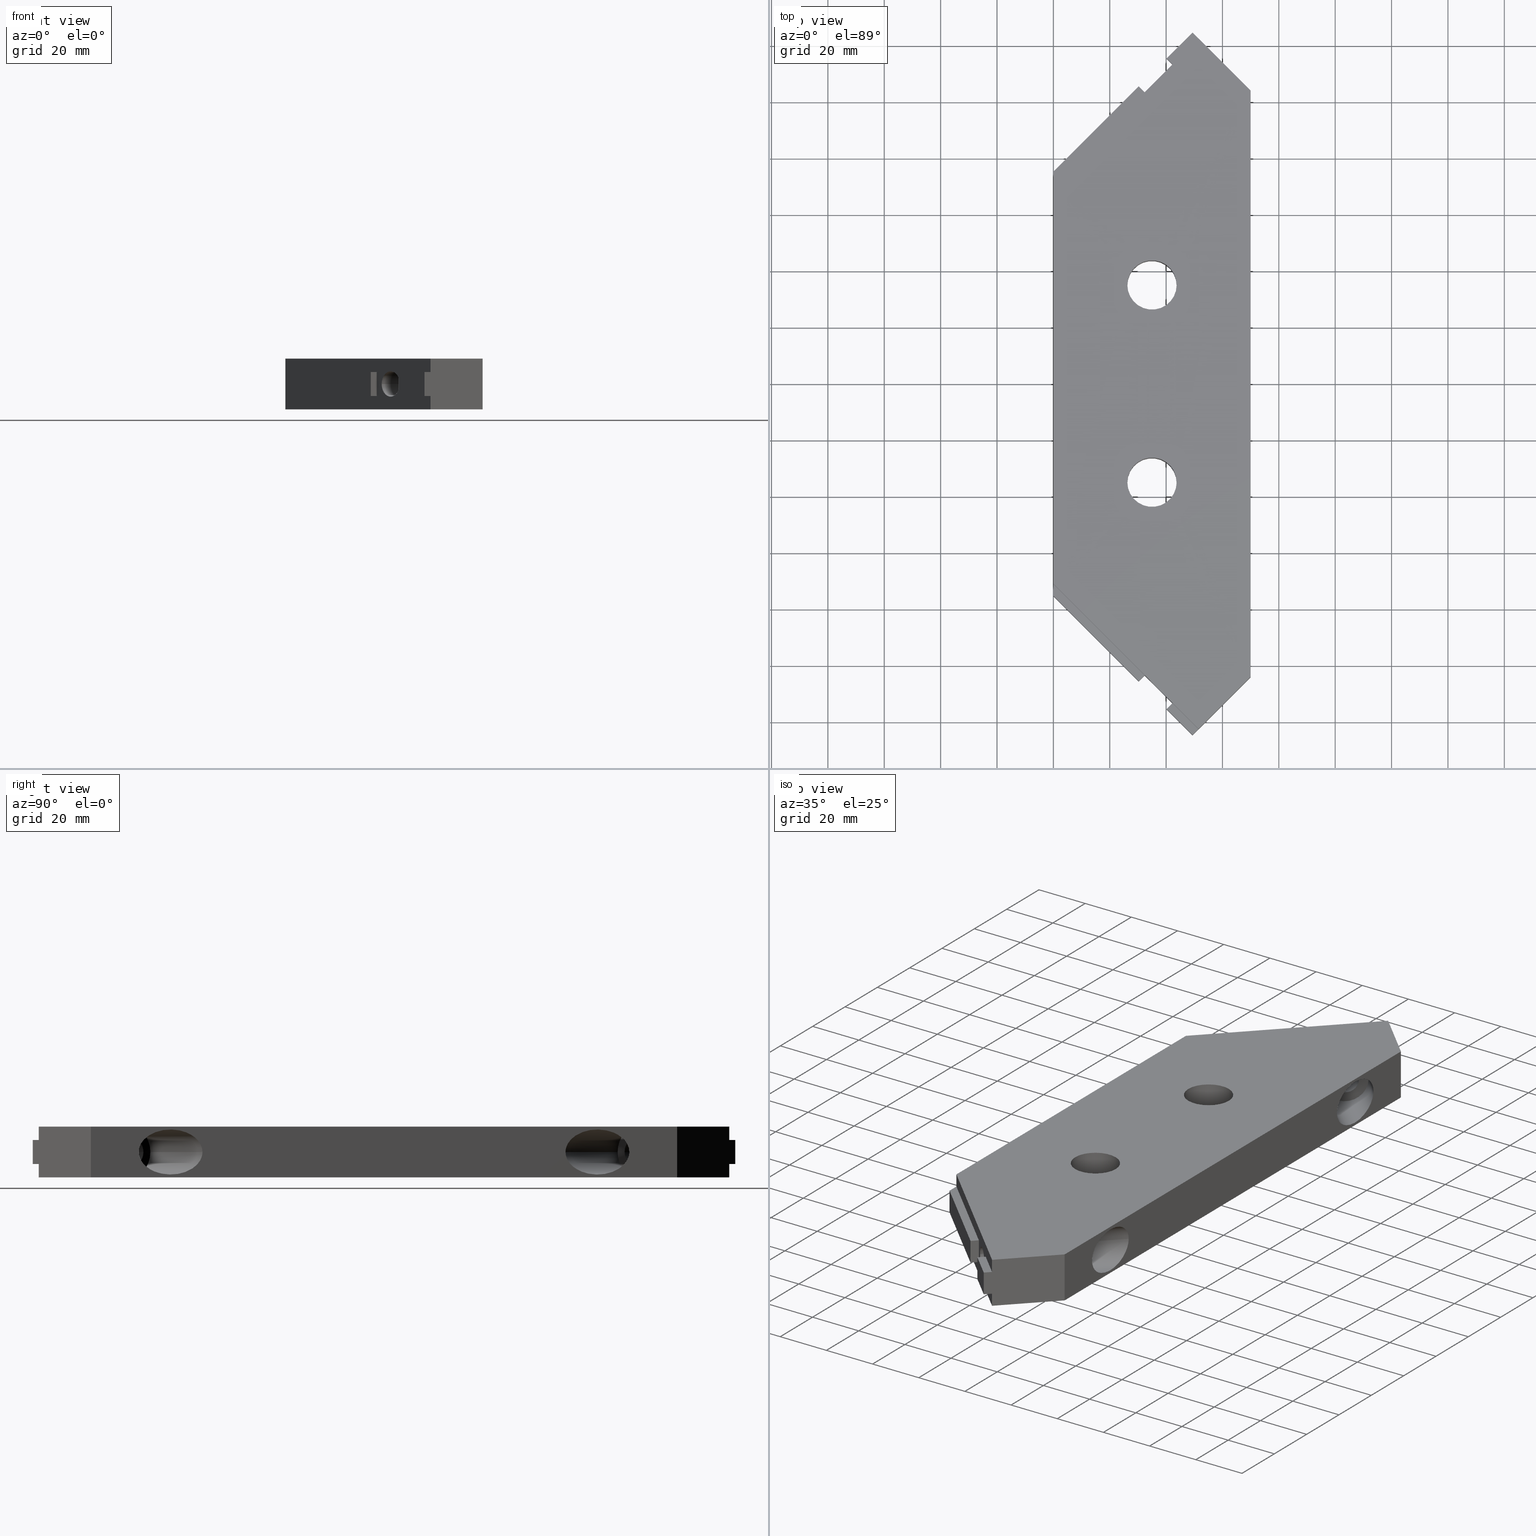
[diagram: canonical four-view strip — front | top / right | iso, engineering-drawing reading convention]
A machine part, canonical four-view strip (front | top / right | iso — engineering-drawing reading convention). The complete STEP part file that produces these views, byte-faithful:
ISO-10303-21;
HEADER;
/****************************************************************
 * Generated by software with PDE/Lib inside                    *
 * PDElib Version v4.4, created Mon 02/23/2004                  *
 * International Technegroup Inc. (www.iti-oh.com)              *
 ****************************************************************/
FILE_DESCRIPTION(('STEP AP203'),'2;1');
FILE_NAME('30.109.00.stp','2011-03-07T09:54:41',(''),(''),'2009.3.110','THINKDESIGN','');
FILE_SCHEMA(('CONFIG_CONTROL_DESIGN'));
ENDSEC;
DATA;
#2=CARTESIAN_POINT('',(69.999999999719904,-103.999999999584390,18.0));
#3=DIRECTION('',(-1.0,0.0,0.0));
#4=DIRECTION('',(0.0,1.0,0.0));
#5=AXIS2_PLACEMENT_3D('',#2,#3,#4);
#6=PLANE('',#5);
#7=CARTESIAN_POINT('',(69.999999999719904,-103.999999999584390,18.0));
#8=VERTEX_POINT('',#7);
#9=CARTESIAN_POINT('',(69.999999999719904,-103.999999999584390,0.0));
#10=VERTEX_POINT('',#9);
#11=CARTESIAN_POINT('',(69.999999999719904,-103.999999999584390,18.0));
#12=DIRECTION('',(0.0,0.0,-1.0));
#13=VECTOR('',#12,18.0);
#14=LINE('',#11,#13);
#15=EDGE_CURVE('',#8,#10,#14,.T.);
#16=ORIENTED_EDGE('',*,*,#15,.T.);
#17=CARTESIAN_POINT('',(69.999999999719876,103.999999999583680,0.0));
#18=VERTEX_POINT('',#17);
#19=CARTESIAN_POINT('',(69.999999999719904,-103.999999999584390,0.0));
#20=DIRECTION('',(0.0,1.0,0.0));
#21=VECTOR('',#20,207.999999999168070);
#22=LINE('',#19,#21);
#23=EDGE_CURVE('',#10,#18,#22,.T.);
#24=ORIENTED_EDGE('',*,*,#23,.T.);
#25=CARTESIAN_POINT('',(69.999999999719876,103.999999999583680,18.0));
#26=VERTEX_POINT('',#25);
#27=CARTESIAN_POINT('',(69.999999999719876,103.999999999583680,18.0));
#28=DIRECTION('',(0.0,0.0,-1.0));
#29=VECTOR('',#28,18.0);
#30=LINE('',#27,#29);
#31=EDGE_CURVE('',#26,#18,#30,.T.);
#32=ORIENTED_EDGE('',*,*,#31,.F.);
#33=CARTESIAN_POINT('',(69.999999999719904,-103.999999999584390,18.0));
#34=DIRECTION('',(0.0,1.0,0.0));
#35=VECTOR('',#34,207.999999999168070);
#36=LINE('',#33,#35);
#37=EDGE_CURVE('',#8,#26,#36,.T.);
#38=ORIENTED_EDGE('',*,*,#37,.F.);
#39=EDGE_LOOP('',(#16,#24,#32,#38));
#40=FACE_OUTER_BOUND('',#39,.T.);
#41=CARTESIAN_POINT('',(69.999999999719904,87.029438061060603,9.0));
#42=VERTEX_POINT('',#41);
#43=CARTESIAN_POINT('',(69.999999999719904,64.402019999743459,9.0));
#44=VERTEX_POINT('',#43);
#45=CARTESIAN_POINT('',(69.999999999719904,75.715729030401292,9.0));
#46=DIRECTION('',(1.0,1.366428E-016,0.0));
#47=DIRECTION('',(1.366428E-016,-1.0,0.0));
#48=AXIS2_PLACEMENT_3D('',#45,#46,#47);
#49=ELLIPSE('',#48,11.313709030659313,8.000000375950680);
#50=EDGE_CURVE('',#42,#44,#49,.T.);
#51=ORIENTED_EDGE('',*,*,#50,.F.);
#52=CARTESIAN_POINT('',(69.999999999719904,75.715729030401292,9.0));
#53=DIRECTION('',(1.0,1.366428E-016,0.0));
#54=DIRECTION('',(1.366428E-016,-1.0,0.0));
#55=AXIS2_PLACEMENT_3D('',#52,#53,#54);
#56=ELLIPSE('',#55,11.313709030659313,8.000000375950680);
#57=EDGE_CURVE('',#44,#42,#56,.T.);
#58=ORIENTED_EDGE('',*,*,#57,.F.);
#59=EDGE_LOOP('',(#51,#58));
#60=FACE_BOUND('',#59,.T.);
#61=CARTESIAN_POINT('',(69.999999999719904,-87.029438061061398,9.0));
#62=VERTEX_POINT('',#61);
#63=CARTESIAN_POINT('',(69.999999999719904,-64.402019999742350,9.0));
#64=VERTEX_POINT('',#63);
#65=CARTESIAN_POINT('',(69.999999999719904,-75.715729030401860,9.0));
#66=DIRECTION('',(1.0,1.366428E-016,0.0));
#67=DIRECTION('',(1.366428E-016,-1.0,0.0));
#68=AXIS2_PLACEMENT_3D('',#65,#66,#67);
#69=ELLIPSE('',#68,11.313709030659538,8.000000375950842);
#70=EDGE_CURVE('',#62,#64,#69,.T.);
#71=ORIENTED_EDGE('',*,*,#70,.F.);
#72=CARTESIAN_POINT('',(69.999999999719904,-75.715729030401860,9.0));
#73=DIRECTION('',(1.0,1.366428E-016,0.0));
#74=DIRECTION('',(1.366428E-016,-1.0,0.0));
#75=AXIS2_PLACEMENT_3D('',#72,#73,#74);
#76=ELLIPSE('',#75,11.313709030659538,8.000000375950842);
#77=EDGE_CURVE('',#64,#62,#76,.T.);
#78=ORIENTED_EDGE('',*,*,#77,.F.);
#79=EDGE_LOOP('',(#71,#78));
#80=FACE_BOUND('',#79,.T.);
#81=ADVANCED_FACE('',(#40,#60,#80),#6,.F.);
#82=CARTESIAN_POINT('',(51.499999999793999,122.499999999510010,18.0));
#83=DIRECTION('',(0.707106781186548,-0.707106781186548,0.0));
#84=DIRECTION('',(-0.707106781186548,-0.707106781186548,0.0));
#85=AXIS2_PLACEMENT_3D('',#82,#83,#84);
#86=PLANE('',#85);
#87=CARTESIAN_POINT('',(51.499999999793999,122.499999999510010,18.0));
#88=VERTEX_POINT('',#87);
#89=CARTESIAN_POINT('',(51.499999999793999,122.499999999510010,13.250000000000000));
#90=VERTEX_POINT('',#89);
#91=CARTESIAN_POINT('',(51.499999999793999,122.499999999510010,18.0));
#92=DIRECTION('',(0.0,0.0,-1.0));
#93=VECTOR('',#92,4.750000000000000);
#94=LINE('',#91,#93);
#95=EDGE_CURVE('',#88,#90,#94,.T.);
#96=ORIENTED_EDGE('',*,*,#95,.T.);
#97=CARTESIAN_POINT('',(42.307611999830442,113.307611999546680,13.250000000000000));
#98=VERTEX_POINT('',#97);
#99=CARTESIAN_POINT('',(42.307611999830442,113.307611999546680,13.250000000000000));
#100=DIRECTION('',(0.707106781186556,0.707106781186539,0.0));
#101=VECTOR('',#100,12.999999780143991);
#102=LINE('',#99,#101);
#103=EDGE_CURVE('',#98,#90,#102,.T.);
#104=ORIENTED_EDGE('',*,*,#103,.F.);
#105=CARTESIAN_POINT('',(42.307611999830442,113.307611999546680,4.750000000000000));
#106=VERTEX_POINT('',#105);
#107=CARTESIAN_POINT('',(42.307611999830442,113.307611999546680,4.750000000000000));
#108=DIRECTION('',(0.0,0.0,1.0));
#109=VECTOR('',#108,8.500000000000000);
#110=LINE('',#107,#109);
#111=EDGE_CURVE('',#106,#98,#110,.T.);
#112=ORIENTED_EDGE('',*,*,#111,.F.);
#113=CARTESIAN_POINT('',(51.499999999793999,122.499999999510010,4.750000000000000));
#114=VERTEX_POINT('',#113);
#115=CARTESIAN_POINT('',(42.307611999830442,113.307611999546680,4.750000000000000));
#116=DIRECTION('',(0.707106781186556,0.707106781186539,0.0));
#117=VECTOR('',#116,12.999999780143991);
#118=LINE('',#115,#117);
#119=EDGE_CURVE('',#106,#114,#118,.T.);
#120=ORIENTED_EDGE('',*,*,#119,.T.);
#121=CARTESIAN_POINT('',(51.499999999793999,122.499999999510010,0.0));
#122=VERTEX_POINT('',#121);
#123=CARTESIAN_POINT('',(51.499999999793999,122.499999999510010,4.750000000000000));
#124=DIRECTION('',(0.0,0.0,-1.0));
#125=VECTOR('',#124,4.750000000000000);
#126=LINE('',#123,#125);
#127=EDGE_CURVE('',#114,#122,#126,.T.);
#128=ORIENTED_EDGE('',*,*,#127,.T.);
#129=CARTESIAN_POINT('',(0.0,70.999999999716010,0.0));
#130=VERTEX_POINT('',#129);
#131=CARTESIAN_POINT('',(51.499999999793999,122.499999999510010,0.0));
#132=DIRECTION('',(-0.707106781186548,-0.707106781186548,0.0));
#133=VECTOR('',#132,72.831998461923064);
#134=LINE('',#131,#133);
#135=EDGE_CURVE('',#122,#130,#134,.T.);
#136=ORIENTED_EDGE('',*,*,#135,.T.);
#137=CARTESIAN_POINT('',(-2.842171E-014,70.999999999716010,4.750000000000000));
#138=VERTEX_POINT('',#137);
#139=CARTESIAN_POINT('',(0.0,70.999999999716010,4.750000000000000));
#140=DIRECTION('',(0.0,0.0,-1.0));
#141=VECTOR('',#140,4.750000000000000);
#142=LINE('',#139,#141);
#143=EDGE_CURVE('',#138,#130,#142,.T.);
#144=ORIENTED_EDGE('',*,*,#143,.F.);
#145=CARTESIAN_POINT('',(32.408116999870344,103.408116999586350,4.750000000000000));
#146=VERTEX_POINT('',#145);
#147=CARTESIAN_POINT('',(-2.842171E-014,70.999999999716010,4.750000000000000));
#148=DIRECTION('',(0.707106781186548,0.707106781186547,0.0));
#149=VECTOR('',#148,45.831998592190722);
#150=LINE('',#147,#149);
#151=EDGE_CURVE('',#138,#146,#150,.T.);
#152=ORIENTED_EDGE('',*,*,#151,.T.);
#153=CARTESIAN_POINT('',(32.408116999870344,103.408116999586350,13.250000000000000));
#154=VERTEX_POINT('',#153);
#155=CARTESIAN_POINT('',(32.408116999870344,103.408116999586350,4.750000000000000));
#156=DIRECTION('',(0.0,0.0,1.0));
#157=VECTOR('',#156,8.500000000000000);
#158=LINE('',#155,#157);
#159=EDGE_CURVE('',#146,#154,#158,.T.);
#160=ORIENTED_EDGE('',*,*,#159,.T.);
#161=CARTESIAN_POINT('',(-2.842171E-014,70.999999999716010,13.250000000000000));
#162=VERTEX_POINT('',#161);
#163=CARTESIAN_POINT('',(-2.842171E-014,70.999999999716010,13.250000000000000));
#164=DIRECTION('',(0.707106781186548,0.707106781186547,0.0));
#165=VECTOR('',#164,45.831998592190722);
#166=LINE('',#163,#165);
#167=EDGE_CURVE('',#162,#154,#166,.T.);
#168=ORIENTED_EDGE('',*,*,#167,.F.);
#169=CARTESIAN_POINT('',(0.0,70.999999999716010,18.0));
#170=VERTEX_POINT('',#169);
#171=CARTESIAN_POINT('',(0.0,70.999999999716010,18.0));
#172=DIRECTION('',(0.0,0.0,-1.0));
#173=VECTOR('',#172,4.750000000000000);
#174=LINE('',#171,#173);
#175=EDGE_CURVE('',#170,#162,#174,.T.);
#176=ORIENTED_EDGE('',*,*,#175,.F.);
#177=CARTESIAN_POINT('',(51.499999999793999,122.499999999510010,18.0));
#178=DIRECTION('',(-0.707106781186548,-0.707106781186548,0.0));
#179=VECTOR('',#178,72.831998461923064);
#180=LINE('',#177,#179);
#181=EDGE_CURVE('',#88,#170,#180,.T.);
#182=ORIENTED_EDGE('',*,*,#181,.F.);
#183=EDGE_LOOP('',(#96,#104,#112,#120,#128,#136,#144,#152,#160,#168,#176,#182));
#184=FACE_OUTER_BOUND('',#183,.T.);
#185=CARTESIAN_POINT('',(40.539845030542139,111.539845030258120,9.0));
#186=VERTEX_POINT('',#185);
#187=CARTESIAN_POINT('',(34.175883999863146,105.175883999579130,9.0));
#188=VERTEX_POINT('',#187);
#189=CARTESIAN_POINT('',(37.357864515202650,108.357864514918630,9.0));
#190=DIRECTION('',(-0.707106781186548,0.707106781186548,0.0));
#191=DIRECTION('',(-0.707106781186548,-0.707106781186548,0.0));
#192=AXIS2_PLACEMENT_3D('',#189,#190,#191);
#193=CIRCLE('',#192,4.500000000000036);
#194=EDGE_CURVE('',#186,#188,#193,.T.);
#195=ORIENTED_EDGE('',*,*,#194,.F.);
#196=CARTESIAN_POINT('',(37.357864515202650,108.357864514918630,9.0));
#197=DIRECTION('',(-0.707106781186548,0.707106781186548,0.0));
#198=DIRECTION('',(-0.707106781186548,-0.707106781186548,0.0));
#199=AXIS2_PLACEMENT_3D('',#196,#197,#198);
#200=CIRCLE('',#199,4.500000000000036);
#201=EDGE_CURVE('',#188,#186,#200,.T.);
#202=ORIENTED_EDGE('',*,*,#201,.F.);
#203=EDGE_LOOP('',(#195,#202));
#204=FACE_BOUND('',#203,.T.);
#205=ADVANCED_FACE('',(#184,#204),#86,.F.);
#206=CARTESIAN_POINT('',(0.0,-70.999999999716010,18.0));
#207=DIRECTION('',(0.707106781186548,0.707106781186548,0.0));
#208=DIRECTION('',(0.707106781186548,-0.707106781186548,0.0));
#209=AXIS2_PLACEMENT_3D('',#206,#207,#208);
#210=PLANE('',#209);
#211=CARTESIAN_POINT('',(0.0,-70.999999999716010,18.0));
#212=VERTEX_POINT('',#211);
#213=CARTESIAN_POINT('',(0.0,-70.999999999716010,13.250000000000000));
#214=VERTEX_POINT('',#213);
#215=CARTESIAN_POINT('',(0.0,-70.999999999716010,18.0));
#216=DIRECTION('',(0.0,0.0,-1.0));
#217=VECTOR('',#216,4.750000000000000);
#218=LINE('',#215,#217);
#219=EDGE_CURVE('',#212,#214,#218,.T.);
#220=ORIENTED_EDGE('',*,*,#219,.T.);
#221=CARTESIAN_POINT('',(32.408116999870344,-103.408116999586810,13.250000000000000));
#222=VERTEX_POINT('',#221);
#223=CARTESIAN_POINT('',(32.408116999870344,-103.408116999586810,13.250000000000000));
#224=DIRECTION('',(-0.707106781186543,0.707106781186553,0.0));
#225=VECTOR('',#224,45.831998592191020);
#226=LINE('',#223,#225);
#227=EDGE_CURVE('',#222,#214,#226,.T.);
#228=ORIENTED_EDGE('',*,*,#227,.F.);
#229=CARTESIAN_POINT('',(32.408116999870344,-103.408116999586810,4.750000000000000));
#230=VERTEX_POINT('',#229);
#231=CARTESIAN_POINT('',(32.408116999870344,-103.408116999586810,4.750000000000000));
#232=DIRECTION('',(0.0,0.0,1.0));
#233=VECTOR('',#232,8.500000000000000);
#234=LINE('',#231,#233);
#235=EDGE_CURVE('',#230,#222,#234,.T.);
#236=ORIENTED_EDGE('',*,*,#235,.F.);
#237=CARTESIAN_POINT('',(0.0,-70.999999999716010,4.750000000000000));
#238=VERTEX_POINT('',#237);
#239=CARTESIAN_POINT('',(32.408116999870344,-103.408116999586810,4.750000000000000));
#240=DIRECTION('',(-0.707106781186543,0.707106781186553,0.0));
#241=VECTOR('',#240,45.831998592191020);
#242=LINE('',#239,#241);
#243=EDGE_CURVE('',#230,#238,#242,.T.);
#244=ORIENTED_EDGE('',*,*,#243,.T.);
#245=CARTESIAN_POINT('',(0.0,-70.999999999716010,0.0));
#246=VERTEX_POINT('',#245);
#247=CARTESIAN_POINT('',(0.0,-70.999999999716010,4.750000000000000));
#248=DIRECTION('',(0.0,0.0,-1.0));
#249=VECTOR('',#248,4.750000000000000);
#250=LINE('',#247,#249);
#251=EDGE_CURVE('',#238,#246,#250,.T.);
#252=ORIENTED_EDGE('',*,*,#251,.T.);
#253=CARTESIAN_POINT('',(51.499999999793999,-122.499999999510010,0.0));
#254=VERTEX_POINT('',#253);
#255=CARTESIAN_POINT('',(0.0,-70.999999999716010,0.0));
#256=DIRECTION('',(0.707106781186548,-0.707106781186548,0.0));
#257=VECTOR('',#256,72.831998461923064);
#258=LINE('',#255,#257);
#259=EDGE_CURVE('',#246,#254,#258,.T.);
#260=ORIENTED_EDGE('',*,*,#259,.T.);
#261=CARTESIAN_POINT('',(51.499999999793999,-122.499999999510010,4.750000000000000));
#262=VERTEX_POINT('',#261);
#263=CARTESIAN_POINT('',(51.499999999793999,-122.499999999510010,4.750000000000000));
#264=DIRECTION('',(0.0,0.0,-1.0));
#265=VECTOR('',#264,4.750000000000000);
#266=LINE('',#263,#265);
#267=EDGE_CURVE('',#262,#254,#266,.T.);
#268=ORIENTED_EDGE('',*,*,#267,.F.);
#269=CARTESIAN_POINT('',(42.307611999830897,-113.307611999546910,4.750000000000000));
#270=VERTEX_POINT('',#269);
#271=CARTESIAN_POINT('',(51.499999999793999,-122.499999999510010,4.750000000000000));
#272=DIRECTION('',(-0.707106781186548,0.707106781186548,0.0));
#273=VECTOR('',#272,12.999999780143510);
#274=LINE('',#271,#273);
#275=EDGE_CURVE('',#262,#270,#274,.T.);
#276=ORIENTED_EDGE('',*,*,#275,.T.);
#277=CARTESIAN_POINT('',(42.307611999830897,-113.307611999546910,13.250000000000000));
#278=VERTEX_POINT('',#277);
#279=CARTESIAN_POINT('',(42.307611999830897,-113.307611999546910,4.750000000000000));
#280=DIRECTION('',(0.0,0.0,1.0));
#281=VECTOR('',#280,8.500000000000000);
#282=LINE('',#279,#281);
#283=EDGE_CURVE('',#270,#278,#282,.T.);
#284=ORIENTED_EDGE('',*,*,#283,.T.);
#285=CARTESIAN_POINT('',(51.499999999793999,-122.499999999510010,13.250000000000000));
#286=VERTEX_POINT('',#285);
#287=CARTESIAN_POINT('',(51.499999999793999,-122.499999999510010,13.250000000000000));
#288=DIRECTION('',(-0.707106781186548,0.707106781186548,0.0));
#289=VECTOR('',#288,12.999999780143510);
#290=LINE('',#287,#289);
#291=EDGE_CURVE('',#286,#278,#290,.T.);
#292=ORIENTED_EDGE('',*,*,#291,.F.);
#293=CARTESIAN_POINT('',(51.499999999793999,-122.499999999510010,18.0));
#294=VERTEX_POINT('',#293);
#295=CARTESIAN_POINT('',(51.499999999793999,-122.499999999510010,18.0));
#296=DIRECTION('',(0.0,0.0,-1.0));
#297=VECTOR('',#296,4.750000000000000);
#298=LINE('',#295,#297);
#299=EDGE_CURVE('',#294,#286,#298,.T.);
#300=ORIENTED_EDGE('',*,*,#299,.F.);
#301=CARTESIAN_POINT('',(0.0,-70.999999999716010,18.0));
#302=DIRECTION('',(0.707106781186548,-0.707106781186548,0.0));
#303=VECTOR('',#302,72.831998461923064);
#304=LINE('',#301,#303);
#305=EDGE_CURVE('',#212,#294,#304,.T.);
#306=ORIENTED_EDGE('',*,*,#305,.F.);
#307=EDGE_LOOP('',(#220,#228,#236,#244,#252,#260,#268,#276,#284,#292,#300,#306));
#308=FACE_OUTER_BOUND('',#307,.T.);
#309=CARTESIAN_POINT('',(40.539845030542409,-111.539845030258360,9.0));
#310=VERTEX_POINT('',#309);
#311=CARTESIAN_POINT('',(34.175883999863458,-105.175883999579450,9.0));
#312=VERTEX_POINT('',#311);
#313=CARTESIAN_POINT('',(37.357864515202976,-108.357864514918960,9.0));
#314=DIRECTION('',(-0.707106781186544,-0.707106781186551,0.0));
#315=DIRECTION('',(-0.707106781186551,0.707106781186544,0.0));
#316=AXIS2_PLACEMENT_3D('',#313,#314,#315);
#317=CIRCLE('',#316,4.499999999999936);
#318=EDGE_CURVE('',#310,#312,#317,.T.);
#319=ORIENTED_EDGE('',*,*,#318,.F.);
#320=CARTESIAN_POINT('',(37.357864515202976,-108.357864514918960,9.0));
#321=DIRECTION('',(-0.707106781186544,-0.707106781186551,0.0));
#322=DIRECTION('',(-0.707106781186551,0.707106781186544,0.0));
#323=AXIS2_PLACEMENT_3D('',#320,#321,#322);
#324=CIRCLE('',#323,4.499999999999936);
#325=EDGE_CURVE('',#312,#310,#324,.T.);
#326=ORIENTED_EDGE('',*,*,#325,.F.);
#327=EDGE_LOOP('',(#319,#326));
#328=FACE_BOUND('',#327,.T.);
#329=ADVANCED_FACE('',(#308,#328),#210,.F.);
#330=CARTESIAN_POINT('',(-7.000004725295597,-147.000004724302470,18.0));
#331=DIRECTION('',(0.0,0.0,1.0));
#332=DIRECTION('',(1.0,0.0,0.0));
#333=AXIS2_PLACEMENT_3D('',#330,#331,#332);
#334=PLANE('',#333);
#335=ORIENTED_EDGE('',*,*,#37,.T.);
#336=CARTESIAN_POINT('',(69.999999999719876,103.999999999583680,18.0));
#337=DIRECTION('',(-0.707106781186539,0.707106781186556,0.0));
#338=VECTOR('',#337,26.162950903797753);
#339=LINE('',#336,#338);
#340=EDGE_CURVE('',#26,#88,#339,.T.);
#341=ORIENTED_EDGE('',*,*,#340,.T.);
#342=ORIENTED_EDGE('',*,*,#181,.T.);
#343=CARTESIAN_POINT('',(0.0,70.999999999716010,18.0));
#344=DIRECTION('',(0.0,-1.0,0.0));
#345=VECTOR('',#344,141.999999999432020);
#346=LINE('',#343,#345);
#347=EDGE_CURVE('',#170,#212,#346,.T.);
#348=ORIENTED_EDGE('',*,*,#347,.T.);
#349=ORIENTED_EDGE('',*,*,#305,.T.);
#350=CARTESIAN_POINT('',(51.499999999793999,-122.499999999510010,18.0));
#351=DIRECTION('',(0.707106781186553,0.707106781186542,0.0));
#352=VECTOR('',#351,26.162950903797270);
#353=LINE('',#350,#352);
#354=EDGE_CURVE('',#294,#8,#353,.T.);
#355=ORIENTED_EDGE('',*,*,#354,.T.);
#356=EDGE_LOOP('',(#335,#341,#342,#348,#349,#355));
#357=FACE_OUTER_BOUND('',#356,.T.);
#358=CARTESIAN_POINT('',(26.249999999859938,-34.999999999860165,18.0));
#359=VERTEX_POINT('',#358);
#360=CARTESIAN_POINT('',(43.749999999859938,-34.999999999860165,18.0));
#361=VERTEX_POINT('',#360);
#362=CARTESIAN_POINT('',(34.999999999859938,-34.999999999860165,18.0));
#363=DIRECTION('',(0.0,0.0,1.0));
#364=DIRECTION('',(1.0,0.0,0.0));
#365=AXIS2_PLACEMENT_3D('',#362,#363,#364);
#366=CIRCLE('',#365,8.750000000000000);
#367=EDGE_CURVE('',#359,#361,#366,.T.);
#368=ORIENTED_EDGE('',*,*,#367,.F.);
#369=CARTESIAN_POINT('',(34.999999999859938,-34.999999999860165,18.0));
#370=DIRECTION('',(0.0,0.0,1.0));
#371=DIRECTION('',(1.0,0.0,0.0));
#372=AXIS2_PLACEMENT_3D('',#369,#370,#371);
#373=CIRCLE('',#372,8.750000000000000);
#374=EDGE_CURVE('',#361,#359,#373,.T.);
#375=ORIENTED_EDGE('',*,*,#374,.F.);
#376=EDGE_LOOP('',(#368,#375));
#377=FACE_BOUND('',#376,.T.);
#378=CARTESIAN_POINT('',(26.249999999859938,34.999999999859710,18.0));
#379=VERTEX_POINT('',#378);
#380=CARTESIAN_POINT('',(43.749999999859938,34.999999999859710,18.0));
#381=VERTEX_POINT('',#380);
#382=CARTESIAN_POINT('',(34.999999999859938,34.999999999859710,18.0));
#383=DIRECTION('',(0.0,0.0,1.0));
#384=DIRECTION('',(1.0,0.0,0.0));
#385=AXIS2_PLACEMENT_3D('',#382,#383,#384);
#386=CIRCLE('',#385,8.750000000000000);
#387=EDGE_CURVE('',#379,#381,#386,.T.);
#388=ORIENTED_EDGE('',*,*,#387,.F.);
#389=CARTESIAN_POINT('',(34.999999999859938,34.999999999859710,18.0));
#390=DIRECTION('',(0.0,0.0,1.0));
#391=DIRECTION('',(1.0,0.0,0.0));
#392=AXIS2_PLACEMENT_3D('',#389,#390,#391);
#393=CIRCLE('',#392,8.750000000000000);
#394=EDGE_CURVE('',#381,#379,#393,.T.);
#395=ORIENTED_EDGE('',*,*,#394,.F.);
#396=EDGE_LOOP('',(#388,#395));
#397=FACE_BOUND('',#396,.T.);
#398=ADVANCED_FACE('',(#357,#377,#397),#334,.T.);
#399=CARTESIAN_POINT('',(-7.000004725295597,-147.000004724302470,0.0));
#400=DIRECTION('',(0.0,0.0,1.0));
#401=DIRECTION('',(1.0,0.0,0.0));
#402=AXIS2_PLACEMENT_3D('',#399,#400,#401);
#403=PLANE('',#402);
#404=CARTESIAN_POINT('',(51.499999999793999,-122.499999999510010,0.0));
#405=DIRECTION('',(0.707106781186553,0.707106781186542,0.0));
#406=VECTOR('',#405,26.162950903797270);
#407=LINE('',#404,#406);
#408=EDGE_CURVE('',#254,#10,#407,.T.);
#409=ORIENTED_EDGE('',*,*,#408,.F.);
#410=ORIENTED_EDGE('',*,*,#259,.F.);
#411=CARTESIAN_POINT('',(0.0,70.999999999716010,0.0));
#412=DIRECTION('',(0.0,-1.0,0.0));
#413=VECTOR('',#412,141.999999999432020);
#414=LINE('',#411,#413);
#415=EDGE_CURVE('',#130,#246,#414,.T.);
#416=ORIENTED_EDGE('',*,*,#415,.F.);
#417=ORIENTED_EDGE('',*,*,#135,.F.);
#418=CARTESIAN_POINT('',(69.999999999719876,103.999999999583680,0.0));
#419=DIRECTION('',(-0.707106781186539,0.707106781186556,0.0));
#420=VECTOR('',#419,26.162950903797753);
#421=LINE('',#418,#420);
#422=EDGE_CURVE('',#18,#122,#421,.T.);
#423=ORIENTED_EDGE('',*,*,#422,.F.);
#424=ORIENTED_EDGE('',*,*,#23,.F.);
#425=EDGE_LOOP('',(#409,#410,#416,#417,#423,#424));
#426=FACE_OUTER_BOUND('',#425,.T.);
#427=CARTESIAN_POINT('',(26.249999999859938,-34.999999999860165,0.0));
#428=VERTEX_POINT('',#427);
#429=CARTESIAN_POINT('',(43.749999999859938,-34.999999999860165,0.0));
#430=VERTEX_POINT('',#429);
#431=CARTESIAN_POINT('',(34.999999999859938,-34.999999999860165,0.0));
#432=DIRECTION('',(0.0,0.0,-1.0));
#433=DIRECTION('',(1.0,0.0,0.0));
#434=AXIS2_PLACEMENT_3D('',#431,#432,#433);
#435=CIRCLE('',#434,8.750000000000000);
#436=EDGE_CURVE('',#428,#430,#435,.T.);
#437=ORIENTED_EDGE('',*,*,#436,.F.);
#438=CARTESIAN_POINT('',(34.999999999859938,-34.999999999860165,0.0));
#439=DIRECTION('',(0.0,0.0,-1.0));
#440=DIRECTION('',(1.0,0.0,0.0));
#441=AXIS2_PLACEMENT_3D('',#438,#439,#440);
#442=CIRCLE('',#441,8.750000000000000);
#443=EDGE_CURVE('',#430,#428,#442,.T.);
#444=ORIENTED_EDGE('',*,*,#443,.F.);
#445=EDGE_LOOP('',(#437,#444));
#446=FACE_BOUND('',#445,.T.);
#447=CARTESIAN_POINT('',(26.249999999859938,34.999999999859710,0.0));
#448=VERTEX_POINT('',#447);
#449=CARTESIAN_POINT('',(43.749999999859938,34.999999999859710,0.0));
#450=VERTEX_POINT('',#449);
#451=CARTESIAN_POINT('',(34.999999999859938,34.999999999859710,0.0));
#452=DIRECTION('',(0.0,0.0,-1.0));
#453=DIRECTION('',(1.0,0.0,0.0));
#454=AXIS2_PLACEMENT_3D('',#451,#452,#453);
#455=CIRCLE('',#454,8.750000000000000);
#456=EDGE_CURVE('',#448,#450,#455,.T.);
#457=ORIENTED_EDGE('',*,*,#456,.F.);
#458=CARTESIAN_POINT('',(34.999999999859938,34.999999999859710,0.0));
#459=DIRECTION('',(0.0,0.0,-1.0));
#460=DIRECTION('',(1.0,0.0,0.0));
#461=AXIS2_PLACEMENT_3D('',#458,#459,#460);
#462=CIRCLE('',#461,8.750000000000000);
#463=EDGE_CURVE('',#450,#448,#462,.T.);
#464=ORIENTED_EDGE('',*,*,#463,.F.);
#465=EDGE_LOOP('',(#457,#464));
#466=FACE_BOUND('',#465,.T.);
#467=ADVANCED_FACE('',(#426,#446,#466),#403,.F.);
#468=CARTESIAN_POINT('',(34.999999999859938,-34.999999999860165,18.0));
#469=DIRECTION('',(0.0,0.0,1.0));
#470=DIRECTION('',(1.0,0.0,0.0));
#471=AXIS2_PLACEMENT_3D('',#468,#469,#470);
#472=CYLINDRICAL_SURFACE('',#471,8.750000000000000);
#473=CARTESIAN_POINT('',(43.749999999859938,-34.999999999860165,18.0));
#474=DIRECTION('',(0.0,0.0,-1.0));
#475=VECTOR('',#474,18.0);
#476=LINE('',#473,#475);
#477=EDGE_CURVE('',#361,#430,#476,.T.);
#478=ORIENTED_EDGE('',*,*,#477,.T.);
#479=ORIENTED_EDGE('',*,*,#443,.T.);
#480=ORIENTED_EDGE('',*,*,#436,.T.);
#481=ORIENTED_EDGE('',*,*,#477,.F.);
#482=ORIENTED_EDGE('',*,*,#374,.T.);
#483=ORIENTED_EDGE('',*,*,#367,.T.);
#484=EDGE_LOOP('',(#478,#479,#480,#481,#482,#483));
#485=FACE_OUTER_BOUND('',#484,.T.);
#486=ADVANCED_FACE('',(#485),#472,.F.);
#487=CARTESIAN_POINT('',(34.999999999859938,34.999999999859710,18.0));
#488=DIRECTION('',(0.0,0.0,1.0));
#489=DIRECTION('',(1.0,0.0,0.0));
#490=AXIS2_PLACEMENT_3D('',#487,#488,#489);
#491=CYLINDRICAL_SURFACE('',#490,8.750000000000000);
#492=CARTESIAN_POINT('',(43.749999999859938,34.999999999859710,18.0));
#493=DIRECTION('',(0.0,0.0,-1.0));
#494=VECTOR('',#493,18.0);
#495=LINE('',#492,#494);
#496=EDGE_CURVE('',#381,#450,#495,.T.);
#497=ORIENTED_EDGE('',*,*,#496,.T.);
#498=ORIENTED_EDGE('',*,*,#463,.T.);
#499=ORIENTED_EDGE('',*,*,#456,.T.);
#500=ORIENTED_EDGE('',*,*,#496,.F.);
#501=ORIENTED_EDGE('',*,*,#394,.T.);
#502=ORIENTED_EDGE('',*,*,#387,.T.);
#503=EDGE_LOOP('',(#497,#498,#499,#500,#501,#502));
#504=FACE_OUTER_BOUND('',#503,.T.);
#505=ADVANCED_FACE('',(#504),#491,.F.);
#506=CARTESIAN_POINT('',(32.408116999870344,103.408116999586350,4.750000000000000));
#507=DIRECTION('',(0.707106781186540,0.707106781186555,0.0));
#508=DIRECTION('',(-0.707106781186555,0.707106781186540,0.0));
#509=AXIS2_PLACEMENT_3D('',#506,#507,#508);
#510=PLANE('',#509);
#511=CARTESIAN_POINT('',(30.286796999878803,105.529436999577850,4.750000000000000));
#512=VERTEX_POINT('',#511);
#513=CARTESIAN_POINT('',(30.286796999878803,105.529436999577850,13.250000000000000));
#514=VERTEX_POINT('',#513);
#515=CARTESIAN_POINT('',(30.286796999878803,105.529436999577850,4.750000000000000));
#516=DIRECTION('',(0.0,0.0,1.0));
#517=VECTOR('',#516,8.500000000000000);
#518=LINE('',#515,#517);
#519=EDGE_CURVE('',#512,#514,#518,.T.);
#520=ORIENTED_EDGE('',*,*,#519,.T.);
#521=CARTESIAN_POINT('',(32.408116999870344,103.408116999586350,13.250000000000000));
#522=DIRECTION('',(-0.707106781186555,0.707106781186540,0.0));
#523=VECTOR('',#522,2.999999514121302);
#524=LINE('',#521,#523);
#525=EDGE_CURVE('',#154,#514,#524,.T.);
#526=ORIENTED_EDGE('',*,*,#525,.F.);
#527=ORIENTED_EDGE('',*,*,#159,.F.);
#528=CARTESIAN_POINT('',(32.408116999870344,103.408116999586350,4.750000000000000));
#529=DIRECTION('',(-0.707106781186555,0.707106781186540,0.0));
#530=VECTOR('',#529,2.999999514121302);
#531=LINE('',#528,#530);
#532=EDGE_CURVE('',#146,#512,#531,.T.);
#533=ORIENTED_EDGE('',*,*,#532,.T.);
#534=EDGE_LOOP('',(#520,#526,#527,#533));
#535=FACE_OUTER_BOUND('',#534,.T.);
#536=ADVANCED_FACE('',(#535),#510,.T.);
#537=CARTESIAN_POINT('',(30.286796999878803,105.529436999577850,4.750000000000000));
#538=DIRECTION('',(-0.707106769513032,0.707106792860063,0.0));
#539=DIRECTION('',(-0.707106792860063,-0.707106769513032,0.0));
#540=AXIS2_PLACEMENT_3D('',#537,#538,#539);
#541=PLANE('',#540);
#542=CARTESIAN_POINT('',(-2.842171E-014,75.242640999699006,4.750000000000000));
#543=VERTEX_POINT('',#542);
#544=CARTESIAN_POINT('',(30.286796999878803,105.529436999577850,4.750000000000000));
#545=DIRECTION('',(-0.707106792860063,-0.707106769513032,0.0));
#546=VECTOR('',#545,42.831998370962644);
#547=LINE('',#544,#546);
#548=EDGE_CURVE('',#512,#543,#547,.T.);
#549=ORIENTED_EDGE('',*,*,#548,.T.);
#550=CARTESIAN_POINT('',(-2.842171E-014,75.242640999699006,13.250000000000000));
#551=VERTEX_POINT('',#550);
#552=CARTESIAN_POINT('',(-2.842171E-014,75.242640999699006,4.750000000000000));
#553=DIRECTION('',(0.0,0.0,1.0));
#554=VECTOR('',#553,8.500000000000000);
#555=LINE('',#552,#554);
#556=EDGE_CURVE('',#543,#551,#555,.T.);
#557=ORIENTED_EDGE('',*,*,#556,.T.);
#558=CARTESIAN_POINT('',(30.286796999878803,105.529436999577850,13.250000000000000));
#559=DIRECTION('',(-0.707106792860063,-0.707106769513032,0.0));
#560=VECTOR('',#559,42.831998370962644);
#561=LINE('',#558,#560);
#562=EDGE_CURVE('',#514,#551,#561,.T.);
#563=ORIENTED_EDGE('',*,*,#562,.F.);
#564=ORIENTED_EDGE('',*,*,#519,.F.);
#565=EDGE_LOOP('',(#549,#557,#563,#564));
#566=FACE_OUTER_BOUND('',#565,.T.);
#567=ADVANCED_FACE('',(#566),#541,.T.);
#568=CARTESIAN_POINT('',(-3.240816424680432,67.547051575120804,4.750000000000000));
#569=DIRECTION('',(0.0,0.0,1.0));
#570=DIRECTION('',(1.0,0.0,0.0));
#571=AXIS2_PLACEMENT_3D('',#568,#569,#570);
#572=PLANE('',#571);
#573=ORIENTED_EDGE('',*,*,#532,.F.);
#574=ORIENTED_EDGE('',*,*,#151,.F.);
#575=CARTESIAN_POINT('',(-2.842171E-014,75.242640999699006,4.750000000000000));
#576=DIRECTION('',(0.0,-1.0,0.0));
#577=VECTOR('',#576,4.242640999982996);
#578=LINE('',#575,#577);
#579=EDGE_CURVE('',#543,#138,#578,.T.);
#580=ORIENTED_EDGE('',*,*,#579,.F.);
#581=ORIENTED_EDGE('',*,*,#548,.F.);
#582=EDGE_LOOP('',(#573,#574,#580,#581));
#583=FACE_OUTER_BOUND('',#582,.T.);
#584=ADVANCED_FACE('',(#583),#572,.F.);
#585=CARTESIAN_POINT('',(-3.240816424680432,67.547051575120804,13.250000000000000));
#586=DIRECTION('',(0.0,0.0,1.0));
#587=DIRECTION('',(1.0,0.0,0.0));
#588=AXIS2_PLACEMENT_3D('',#585,#586,#587);
#589=PLANE('',#588);
#590=ORIENTED_EDGE('',*,*,#562,.T.);
#591=CARTESIAN_POINT('',(-2.842171E-014,75.242640999699006,13.250000000000000));
#592=DIRECTION('',(0.0,-1.0,0.0));
#593=VECTOR('',#592,4.242640999982996);
#594=LINE('',#591,#593);
#595=EDGE_CURVE('',#551,#162,#594,.T.);
#596=ORIENTED_EDGE('',*,*,#595,.T.);
#597=ORIENTED_EDGE('',*,*,#167,.T.);
#598=ORIENTED_EDGE('',*,*,#525,.T.);
#599=EDGE_LOOP('',(#590,#596,#597,#598));
#600=FACE_OUTER_BOUND('',#599,.T.);
#601=ADVANCED_FACE('',(#600),#589,.T.);
#602=CARTESIAN_POINT('',(49.378679999802443,124.621319999501110,4.750000000000000));
#603=DIRECTION('',(-0.707106781186548,0.707106781186548,0.0));
#604=DIRECTION('',(-0.707106781186548,-0.707106781186548,0.0));
#605=AXIS2_PLACEMENT_3D('',#602,#603,#604);
#606=PLANE('',#605);
#607=CARTESIAN_POINT('',(49.378679999802443,124.621319999501110,4.750000000000000));
#608=VERTEX_POINT('',#607);
#609=CARTESIAN_POINT('',(40.186291999839227,115.428931999537890,4.750000000000000));
#610=VERTEX_POINT('',#609);
#611=CARTESIAN_POINT('',(49.378679999802443,124.621319999501110,4.750000000000000));
#612=DIRECTION('',(-0.707106781186548,-0.707106781186548,0.0));
#613=VECTOR('',#612,12.999999780143670);
#614=LINE('',#611,#613);
#615=EDGE_CURVE('',#608,#610,#614,.T.);
#616=ORIENTED_EDGE('',*,*,#615,.T.);
#617=CARTESIAN_POINT('',(40.186291999839227,115.428931999537890,13.250000000000000));
#618=VERTEX_POINT('',#617);
#619=CARTESIAN_POINT('',(40.186291999839227,115.428931999537890,4.750000000000000));
#620=DIRECTION('',(0.0,0.0,1.0));
#621=VECTOR('',#620,8.500000000000000);
#622=LINE('',#619,#621);
#623=EDGE_CURVE('',#610,#618,#622,.T.);
#624=ORIENTED_EDGE('',*,*,#623,.T.);
#625=CARTESIAN_POINT('',(49.378679999802443,124.621319999501110,13.250000000000000));
#626=VERTEX_POINT('',#625);
#627=CARTESIAN_POINT('',(49.378679999802443,124.621319999501110,13.250000000000000));
#628=DIRECTION('',(-0.707106781186548,-0.707106781186548,0.0));
#629=VECTOR('',#628,12.999999780143670);
#630=LINE('',#627,#629);
#631=EDGE_CURVE('',#626,#618,#630,.T.);
#632=ORIENTED_EDGE('',*,*,#631,.F.);
#633=CARTESIAN_POINT('',(49.378679999802443,124.621319999501110,4.750000000000000));
#634=DIRECTION('',(0.0,0.0,1.0));
#635=VECTOR('',#634,8.500000000000000);
#636=LINE('',#633,#635);
#637=EDGE_CURVE('',#608,#626,#636,.T.);
#638=ORIENTED_EDGE('',*,*,#637,.F.);
#639=EDGE_LOOP('',(#616,#624,#632,#638));
#640=FACE_OUTER_BOUND('',#639,.T.);
#641=ADVANCED_FACE('',(#640),#606,.T.);
#642=CARTESIAN_POINT('',(40.186291999839227,115.428931999537890,4.750000000000000));
#643=DIRECTION('',(-0.707106781186548,-0.707106781186548,0.0));
#644=DIRECTION('',(0.707106781186548,-0.707106781186548,0.0));
#645=AXIS2_PLACEMENT_3D('',#642,#643,#644);
#646=PLANE('',#645);
#647=CARTESIAN_POINT('',(40.186291999839227,115.428931999537890,4.750000000000000));
#648=DIRECTION('',(0.707106781186548,-0.707106781186548,0.0));
#649=VECTOR('',#648,2.999999514121191);
#650=LINE('',#647,#649);
#651=EDGE_CURVE('',#610,#106,#650,.T.);
#652=ORIENTED_EDGE('',*,*,#651,.T.);
#653=ORIENTED_EDGE('',*,*,#111,.T.);
#654=CARTESIAN_POINT('',(40.186291999839227,115.428931999537890,13.250000000000000));
#655=DIRECTION('',(0.707106781186548,-0.707106781186548,0.0));
#656=VECTOR('',#655,2.999999514121191);
#657=LINE('',#654,#656);
#658=EDGE_CURVE('',#618,#98,#657,.T.);
#659=ORIENTED_EDGE('',*,*,#658,.F.);
#660=ORIENTED_EDGE('',*,*,#623,.F.);
#661=EDGE_LOOP('',(#652,#653,#659,#660));
#662=FACE_OUTER_BOUND('',#661,.T.);
#663=ADVANCED_FACE('',(#662),#646,.T.);
#664=CARTESIAN_POINT('',(39.054916475099503,112.176236474834350,4.750000000000000));
#665=DIRECTION('',(0.0,0.0,1.0));
#666=DIRECTION('',(1.0,0.0,0.0));
#667=AXIS2_PLACEMENT_3D('',#664,#665,#666);
#668=PLANE('',#667);
#669=CARTESIAN_POINT('',(51.499999999793999,122.499999999510010,4.750000000000000));
#670=DIRECTION('',(-0.707106781186623,0.707106781186472,0.0));
#671=VECTOR('',#670,2.999999514121031);
#672=LINE('',#669,#671);
#673=EDGE_CURVE('',#114,#608,#672,.T.);
#674=ORIENTED_EDGE('',*,*,#673,.F.);
#675=ORIENTED_EDGE('',*,*,#119,.F.);
#676=ORIENTED_EDGE('',*,*,#651,.F.);
#677=ORIENTED_EDGE('',*,*,#615,.F.);
#678=EDGE_LOOP('',(#674,#675,#676,#677));
#679=FACE_OUTER_BOUND('',#678,.T.);
#680=ADVANCED_FACE('',(#679),#668,.F.);
#681=CARTESIAN_POINT('',(39.054916475099503,112.176236474834350,13.250000000000000));
#682=DIRECTION('',(0.0,0.0,1.0));
#683=DIRECTION('',(1.0,0.0,0.0));
#684=AXIS2_PLACEMENT_3D('',#681,#682,#683);
#685=PLANE('',#684);
#686=ORIENTED_EDGE('',*,*,#631,.T.);
#687=ORIENTED_EDGE('',*,*,#658,.T.);
#688=ORIENTED_EDGE('',*,*,#103,.T.);
#689=CARTESIAN_POINT('',(51.499999999793999,122.499999999510010,13.250000000000000));
#690=DIRECTION('',(-0.707106781186623,0.707106781186472,0.0));
#691=VECTOR('',#690,2.999999514121031);
#692=LINE('',#689,#691);
#693=EDGE_CURVE('',#90,#626,#692,.T.);
#694=ORIENTED_EDGE('',*,*,#693,.T.);
#695=EDGE_LOOP('',(#686,#687,#688,#694));
#696=FACE_OUTER_BOUND('',#695,.T.);
#697=ADVANCED_FACE('',(#696),#685,.T.);
#698=CARTESIAN_POINT('',(70.000030144815810,103.999969854487740,18.000039370139636));
#699=DIRECTION('',(-0.707106781186552,-0.707106781186543,0.0));
#700=DIRECTION('',(-0.707106781186543,0.707106781186552,0.0));
#701=AXIS2_PLACEMENT_3D('',#698,#699,#700);
#702=PLANE('',#701);
#703=ORIENTED_EDGE('',*,*,#31,.T.);
#704=ORIENTED_EDGE('',*,*,#422,.T.);
#705=ORIENTED_EDGE('',*,*,#127,.F.);
#706=ORIENTED_EDGE('',*,*,#673,.T.);
#707=ORIENTED_EDGE('',*,*,#637,.T.);
#708=ORIENTED_EDGE('',*,*,#693,.F.);
#709=ORIENTED_EDGE('',*,*,#95,.F.);
#710=ORIENTED_EDGE('',*,*,#340,.F.);
#711=EDGE_LOOP('',(#703,#704,#705,#706,#707,#708,#709,#710));
#712=FACE_OUTER_BOUND('',#711,.T.);
#713=ADVANCED_FACE('',(#712),#702,.F.);
#714=CARTESIAN_POINT('',(0.0,-75.242640999699063,4.750000000000000));
#715=DIRECTION('',(-0.707106769513038,-0.707106792860057,0.0));
#716=DIRECTION('',(0.707106792860057,-0.707106769513038,0.0));
#717=AXIS2_PLACEMENT_3D('',#714,#715,#716);
#718=PLANE('',#717);
#719=CARTESIAN_POINT('',(0.0,-75.242640999699063,4.750000000000000));
#720=VERTEX_POINT('',#719);
#721=CARTESIAN_POINT('',(30.286796999878803,-105.529436999578350,4.750000000000000));
#722=VERTEX_POINT('',#721);
#723=CARTESIAN_POINT('',(0.0,-75.242640999699063,4.750000000000000));
#724=DIRECTION('',(0.707106792860057,-0.707106769513038,0.0));
#725=VECTOR('',#724,42.831998370962935);
#726=LINE('',#723,#725);
#727=EDGE_CURVE('',#720,#722,#726,.T.);
#728=ORIENTED_EDGE('',*,*,#727,.T.);
#729=CARTESIAN_POINT('',(30.286796999878803,-105.529436999578350,13.250000000000000));
#730=VERTEX_POINT('',#729);
#731=CARTESIAN_POINT('',(30.286796999878803,-105.529436999578350,4.750000000000000));
#732=DIRECTION('',(0.0,0.0,1.0));
#733=VECTOR('',#732,8.500000000000000);
#734=LINE('',#731,#733);
#735=EDGE_CURVE('',#722,#730,#734,.T.);
#736=ORIENTED_EDGE('',*,*,#735,.T.);
#737=CARTESIAN_POINT('',(0.0,-75.242640999699063,13.250000000000000));
#738=VERTEX_POINT('',#737);
#739=CARTESIAN_POINT('',(0.0,-75.242640999699063,13.250000000000000));
#740=DIRECTION('',(0.707106792860057,-0.707106769513038,0.0));
#741=VECTOR('',#740,42.831998370962935);
#742=LINE('',#739,#741);
#743=EDGE_CURVE('',#738,#730,#742,.T.);
#744=ORIENTED_EDGE('',*,*,#743,.F.);
#745=CARTESIAN_POINT('',(0.0,-75.242640999699063,4.750000000000000));
#746=DIRECTION('',(0.0,0.0,1.0));
#747=VECTOR('',#746,8.500000000000000);
#748=LINE('',#745,#747);
#749=EDGE_CURVE('',#720,#738,#748,.T.);
#750=ORIENTED_EDGE('',*,*,#749,.F.);
#751=EDGE_LOOP('',(#728,#736,#744,#750));
#752=FACE_OUTER_BOUND('',#751,.T.);
#753=ADVANCED_FACE('',(#752),#718,.T.);
#754=CARTESIAN_POINT('',(30.286796999878803,-105.529436999578350,4.750000000000000));
#755=DIRECTION('',(0.707106781186548,-0.707106781186548,0.0));
#756=DIRECTION('',(0.707106781186548,0.707106781186548,0.0));
#757=AXIS2_PLACEMENT_3D('',#754,#755,#756);
#758=PLANE('',#757);
#759=CARTESIAN_POINT('',(30.286796999878803,-105.529436999578350,4.750000000000000));
#760=DIRECTION('',(0.707106781186547,0.707106781186547,0.0));
#761=VECTOR('',#760,2.999999514121333);
#762=LINE('',#759,#761);
#763=EDGE_CURVE('',#722,#230,#762,.T.);
#764=ORIENTED_EDGE('',*,*,#763,.T.);
#765=ORIENTED_EDGE('',*,*,#235,.T.);
#766=CARTESIAN_POINT('',(30.286796999878803,-105.529436999578350,13.250000000000000));
#767=DIRECTION('',(0.707106781186547,0.707106781186547,0.0));
#768=VECTOR('',#767,2.999999514121333);
#769=LINE('',#766,#768);
#770=EDGE_CURVE('',#730,#222,#769,.T.);
#771=ORIENTED_EDGE('',*,*,#770,.F.);
#772=ORIENTED_EDGE('',*,*,#735,.F.);
#773=EDGE_LOOP('',(#764,#765,#771,#772));
#774=FACE_OUTER_BOUND('',#773,.T.);
#775=ADVANCED_FACE('',(#774),#758,.T.);
#776=CARTESIAN_POINT('',(-3.240816424680403,-108.982385424250280,4.750000000000000));
#777=DIRECTION('',(0.0,0.0,1.0));
#778=DIRECTION('',(1.0,0.0,0.0));
#779=AXIS2_PLACEMENT_3D('',#776,#777,#778);
#780=PLANE('',#779);
#781=CARTESIAN_POINT('',(0.0,-70.999999999716010,4.750000000000000));
#782=DIRECTION('',(0.0,-1.0,0.0));
#783=VECTOR('',#782,4.242640999983053);
#784=LINE('',#781,#783);
#785=EDGE_CURVE('',#238,#720,#784,.T.);
#786=ORIENTED_EDGE('',*,*,#785,.F.);
#787=ORIENTED_EDGE('',*,*,#243,.F.);
#788=ORIENTED_EDGE('',*,*,#763,.F.);
#789=ORIENTED_EDGE('',*,*,#727,.F.);
#790=EDGE_LOOP('',(#786,#787,#788,#789));
#791=FACE_OUTER_BOUND('',#790,.T.);
#792=ADVANCED_FACE('',(#791),#780,.F.);
#793=CARTESIAN_POINT('',(-3.240816424680403,-108.982385424250280,13.250000000000000));
#794=DIRECTION('',(0.0,0.0,1.0));
#795=DIRECTION('',(1.0,0.0,0.0));
#796=AXIS2_PLACEMENT_3D('',#793,#794,#795);
#797=PLANE('',#796);
#798=ORIENTED_EDGE('',*,*,#743,.T.);
#799=ORIENTED_EDGE('',*,*,#770,.T.);
#800=ORIENTED_EDGE('',*,*,#227,.T.);
#801=CARTESIAN_POINT('',(0.0,-70.999999999716010,13.250000000000000));
#802=DIRECTION('',(0.0,-1.0,0.0));
#803=VECTOR('',#802,4.242640999983053);
#804=LINE('',#801,#803);
#805=EDGE_CURVE('',#214,#738,#804,.T.);
#806=ORIENTED_EDGE('',*,*,#805,.T.);
#807=EDGE_LOOP('',(#798,#799,#800,#806));
#808=FACE_OUTER_BOUND('',#807,.T.);
#809=ADVANCED_FACE('',(#808),#797,.T.);
#810=CARTESIAN_POINT('',(0.0,75.242684306786259,18.000043307087253));
#811=DIRECTION('',(1.0,0.0,0.0));
#812=DIRECTION('',(0.0,-1.0,0.0));
#813=AXIS2_PLACEMENT_3D('',#810,#811,#812);
#814=PLANE('',#813);
#815=ORIENTED_EDGE('',*,*,#175,.T.);
#816=ORIENTED_EDGE('',*,*,#595,.F.);
#817=ORIENTED_EDGE('',*,*,#556,.F.);
#818=ORIENTED_EDGE('',*,*,#579,.T.);
#819=ORIENTED_EDGE('',*,*,#143,.T.);
#820=ORIENTED_EDGE('',*,*,#415,.T.);
#821=ORIENTED_EDGE('',*,*,#251,.F.);
#822=ORIENTED_EDGE('',*,*,#785,.T.);
#823=ORIENTED_EDGE('',*,*,#749,.T.);
#824=ORIENTED_EDGE('',*,*,#805,.F.);
#825=ORIENTED_EDGE('',*,*,#219,.F.);
#826=ORIENTED_EDGE('',*,*,#347,.F.);
#827=EDGE_LOOP('',(#815,#816,#817,#818,#819,#820,#821,#822,#823,#824,#825,#826));
#828=FACE_OUTER_BOUND('',#827,.T.);
#829=ADVANCED_FACE('',(#828),#814,.F.);
#830=CARTESIAN_POINT('',(42.307611999830897,-113.307611999546910,4.750000000000000));
#831=DIRECTION('',(-0.707106781186514,0.707106781186581,0.0));
#832=DIRECTION('',(-0.707106781186581,-0.707106781186514,0.0));
#833=AXIS2_PLACEMENT_3D('',#830,#831,#832);
#834=PLANE('',#833);
#835=CARTESIAN_POINT('',(40.186291999839199,-115.428931999538410,4.750000000000000));
#836=VERTEX_POINT('',#835);
#837=CARTESIAN_POINT('',(40.186291999839199,-115.428931999538410,13.250000000000000));
#838=VERTEX_POINT('',#837);
#839=CARTESIAN_POINT('',(40.186291999839199,-115.428931999538410,4.750000000000000));
#840=DIRECTION('',(0.0,0.0,1.0));
#841=VECTOR('',#840,8.500000000000000);
#842=LINE('',#839,#841);
#843=EDGE_CURVE('',#836,#838,#842,.T.);
#844=ORIENTED_EDGE('',*,*,#843,.T.);
#845=CARTESIAN_POINT('',(42.307611999830897,-113.307611999546910,13.250000000000000));
#846=DIRECTION('',(-0.707106781186581,-0.707106781186514,0.0));
#847=VECTOR('',#846,2.999999514121412);
#848=LINE('',#845,#847);
#849=EDGE_CURVE('',#278,#838,#848,.T.);
#850=ORIENTED_EDGE('',*,*,#849,.F.);
#851=ORIENTED_EDGE('',*,*,#283,.F.);
#852=CARTESIAN_POINT('',(42.307611999830897,-113.307611999546910,4.750000000000000));
#853=DIRECTION('',(-0.707106781186581,-0.707106781186514,0.0));
#854=VECTOR('',#853,2.999999514121412);
#855=LINE('',#852,#854);
#856=EDGE_CURVE('',#270,#836,#855,.T.);
#857=ORIENTED_EDGE('',*,*,#856,.T.);
#858=EDGE_LOOP('',(#844,#850,#851,#857));
#859=FACE_OUTER_BOUND('',#858,.T.);
#860=ADVANCED_FACE('',(#859),#834,.T.);
#861=CARTESIAN_POINT('',(40.186291999839199,-115.428931999538410,4.750000000000000));
#862=DIRECTION('',(-0.707106781186550,-0.707106781186545,0.0));
#863=DIRECTION('',(0.707106781186545,-0.707106781186550,0.0));
#864=AXIS2_PLACEMENT_3D('',#861,#862,#863);
#865=PLANE('',#864);
#866=CARTESIAN_POINT('',(49.378679999802330,-124.621319999501610,4.750000000000000));
#867=VERTEX_POINT('',#866);
#868=CARTESIAN_POINT('',(40.186291999839199,-115.428931999538410,4.750000000000000));
#869=DIRECTION('',(0.707106781186545,-0.707106781186550,0.0));
#870=VECTOR('',#869,12.999999780143600);
#871=LINE('',#868,#870);
#872=EDGE_CURVE('',#836,#867,#871,.T.);
#873=ORIENTED_EDGE('',*,*,#872,.T.);
#874=CARTESIAN_POINT('',(49.378679999802330,-124.621319999501610,13.250000000000000));
#875=VERTEX_POINT('',#874);
#876=CARTESIAN_POINT('',(49.378679999802330,-124.621319999501610,4.750000000000000));
#877=DIRECTION('',(0.0,0.0,1.0));
#878=VECTOR('',#877,8.500000000000000);
#879=LINE('',#876,#878);
#880=EDGE_CURVE('',#867,#875,#879,.T.);
#881=ORIENTED_EDGE('',*,*,#880,.T.);
#882=CARTESIAN_POINT('',(40.186291999839199,-115.428931999538410,13.250000000000000));
#883=DIRECTION('',(0.707106781186545,-0.707106781186550,0.0));
#884=VECTOR('',#883,12.999999780143600);
#885=LINE('',#882,#884);
#886=EDGE_CURVE('',#838,#875,#885,.T.);
#887=ORIENTED_EDGE('',*,*,#886,.F.);
#888=ORIENTED_EDGE('',*,*,#843,.F.);
#889=EDGE_LOOP('',(#873,#881,#887,#888));
#890=FACE_OUTER_BOUND('',#889,.T.);
#891=ADVANCED_FACE('',(#890),#865,.T.);
#892=CARTESIAN_POINT('',(39.054916475099475,-125.752695524238800,4.750000000000000));
#893=DIRECTION('',(0.0,0.0,1.0));
#894=DIRECTION('',(1.0,0.0,0.0));
#895=AXIS2_PLACEMENT_3D('',#892,#893,#894);
#896=PLANE('',#895);
#897=ORIENTED_EDGE('',*,*,#856,.F.);
#898=ORIENTED_EDGE('',*,*,#275,.F.);
#899=CARTESIAN_POINT('',(49.378679999802330,-124.621319999501610,4.750000000000000));
#900=DIRECTION('',(0.707106781186559,0.707106781186536,0.0));
#901=VECTOR('',#900,2.999999514121463);
#902=LINE('',#899,#901);
#903=EDGE_CURVE('',#867,#262,#902,.T.);
#904=ORIENTED_EDGE('',*,*,#903,.F.);
#905=ORIENTED_EDGE('',*,*,#872,.F.);
#906=EDGE_LOOP('',(#897,#898,#904,#905));
#907=FACE_OUTER_BOUND('',#906,.T.);
#908=ADVANCED_FACE('',(#907),#896,.F.);
#909=CARTESIAN_POINT('',(39.054916475099475,-125.752695524238800,13.250000000000000));
#910=DIRECTION('',(0.0,0.0,1.0));
#911=DIRECTION('',(1.0,0.0,0.0));
#912=AXIS2_PLACEMENT_3D('',#909,#910,#911);
#913=PLANE('',#912);
#914=ORIENTED_EDGE('',*,*,#886,.T.);
#915=CARTESIAN_POINT('',(49.378679999802330,-124.621319999501610,13.250000000000000));
#916=DIRECTION('',(0.707106781186559,0.707106781186536,0.0));
#917=VECTOR('',#916,2.999999514121463);
#918=LINE('',#915,#917);
#919=EDGE_CURVE('',#875,#286,#918,.T.);
#920=ORIENTED_EDGE('',*,*,#919,.T.);
#921=ORIENTED_EDGE('',*,*,#291,.T.);
#922=ORIENTED_EDGE('',*,*,#849,.T.);
#923=EDGE_LOOP('',(#914,#920,#921,#922));
#924=FACE_OUTER_BOUND('',#923,.T.);
#925=ADVANCED_FACE('',(#924),#913,.T.);
#926=CARTESIAN_POINT('',(49.378649854706453,-124.621350144597530,18.000039370121510));
#927=DIRECTION('',(-0.707106781186542,0.707106781186553,0.0));
#928=DIRECTION('',(0.707106781186553,0.707106781186542,0.0));
#929=AXIS2_PLACEMENT_3D('',#926,#927,#928);
#930=PLANE('',#929);
#931=ORIENTED_EDGE('',*,*,#354,.F.);
#932=ORIENTED_EDGE('',*,*,#299,.T.);
#933=ORIENTED_EDGE('',*,*,#919,.F.);
#934=ORIENTED_EDGE('',*,*,#880,.F.);
#935=ORIENTED_EDGE('',*,*,#903,.T.);
#936=ORIENTED_EDGE('',*,*,#267,.T.);
#937=ORIENTED_EDGE('',*,*,#408,.T.);
#938=ORIENTED_EDGE('',*,*,#15,.F.);
#939=EDGE_LOOP('',(#931,#932,#933,#934,#935,#936,#937,#938));
#940=FACE_OUTER_BOUND('',#939,.T.);
#941=ADVANCED_FACE('',(#940),#930,.F.);
#942=CARTESIAN_POINT('',(31.458278224614787,114.257450805506440,9.0));
#943=DIRECTION('',(-0.707106781186548,0.707106781186548,0.0));
#944=DIRECTION('',(-0.707106781186548,-0.707106781186548,0.0));
#945=AXIS2_PLACEMENT_3D('',#942,#943,#944);
#946=CYLINDRICAL_SURFACE('',#945,4.500000000000036);
#947=CARTESIAN_POINT('',(60.338835030462988,91.740855030337244,9.0));
#948=VERTEX_POINT('',#947);
#949=CARTESIAN_POINT('',(53.974873999783995,85.376893999658250,9.0));
#950=VERTEX_POINT('',#949);
#951=CARTESIAN_POINT('',(57.156854515123513,88.558874514997740,9.0));
#952=DIRECTION('',(-0.707106781186550,0.707106781186545,0.0));
#953=DIRECTION('',(-0.707106781186545,-0.707106781186550,0.0));
#954=AXIS2_PLACEMENT_3D('',#951,#952,#953);
#955=CIRCLE('',#954,4.500000000000036);
#956=EDGE_CURVE('',#948,#950,#955,.T.);
#957=ORIENTED_EDGE('',*,*,#956,.F.);
#958=CARTESIAN_POINT('',(57.156854515123513,88.558874514997740,9.0));
#959=DIRECTION('',(-0.707106781186550,0.707106781186545,0.0));
#960=DIRECTION('',(-0.707106781186545,-0.707106781186550,0.0));
#961=AXIS2_PLACEMENT_3D('',#958,#959,#960);
#962=CIRCLE('',#961,4.500000000000036);
#963=EDGE_CURVE('',#950,#948,#962,.T.);
#964=ORIENTED_EDGE('',*,*,#963,.F.);
#965=CARTESIAN_POINT('',(34.175883999863139,105.175883999579100,9.0));
#966=DIRECTION('',(0.707106781186548,-0.707106781186547,0.0));
#967=VECTOR('',#966,28.000000179177356);
#968=LINE('',#965,#967);
#969=EDGE_CURVE('',#188,#950,#968,.T.);
#970=ORIENTED_EDGE('',*,*,#969,.F.);
#971=ORIENTED_EDGE('',*,*,#201,.T.);
#972=ORIENTED_EDGE('',*,*,#194,.T.);
#973=ORIENTED_EDGE('',*,*,#969,.T.);
#974=EDGE_LOOP('',(#957,#964,#970,#971,#972,#973));
#975=FACE_OUTER_BOUND('',#974,.T.);
#976=ADVANCED_FACE('',(#975),#946,.F.);
#977=CARTESIAN_POINT('',(68.470563545782824,99.872583545657108,-7.000000751901400));
#978=DIRECTION('',(0.707106781186550,-0.707106781186545,0.0));
#979=DIRECTION('',(0.0,0.0,1.0));
#980=AXIS2_PLACEMENT_3D('',#977,#978,#979);
#981=PLANE('',#980);
#982=CARTESIAN_POINT('',(62.813709030453225,94.215729030327282,9.0));
#983=VERTEX_POINT('',#982);
#984=CARTESIAN_POINT('',(51.499999999793914,82.902019999667971,9.0));
#985=VERTEX_POINT('',#984);
#986=CARTESIAN_POINT('',(57.156854515123570,88.558874514997626,9.0));
#987=DIRECTION('',(-0.707106781186548,0.707106781186548,0.0));
#988=DIRECTION('',(-0.707106781186548,-0.707106781186548,0.0));
#989=AXIS2_PLACEMENT_3D('',#986,#987,#988);
#990=CIRCLE('',#989,8.000000375950680);
#991=EDGE_CURVE('',#983,#985,#990,.T.);
#992=ORIENTED_EDGE('',*,*,#991,.F.);
#993=CARTESIAN_POINT('',(57.156854515123570,88.558874514997626,9.0));
#994=DIRECTION('',(-0.707106781186548,0.707106781186548,0.0));
#995=DIRECTION('',(-0.707106781186548,-0.707106781186548,0.0));
#996=AXIS2_PLACEMENT_3D('',#993,#994,#995);
#997=CIRCLE('',#996,8.000000375950680);
#998=EDGE_CURVE('',#985,#983,#997,.T.);
#999=ORIENTED_EDGE('',*,*,#998,.F.);
#1000=EDGE_LOOP('',(#992,#999));
#1001=FACE_OUTER_BOUND('',#1000,.T.);
#1002=ORIENTED_EDGE('',*,*,#963,.T.);
#1003=ORIENTED_EDGE('',*,*,#956,.T.);
#1004=EDGE_LOOP('',(#1002,#1003));
#1005=FACE_BOUND('',#1004,.T.);
#1006=ADVANCED_FACE('',(#1001,#1005),#981,.T.);
#1007=CARTESIAN_POINT('',(57.156854515123570,88.558874514997626,9.0));
#1008=DIRECTION('',(-0.707106781186548,0.707106781186548,0.0));
#1009=DIRECTION('',(-0.707106781186548,-0.707106781186548,0.0));
#1010=AXIS2_PLACEMENT_3D('',#1007,#1008,#1009);
#1011=CYLINDRICAL_SURFACE('',#1010,8.000000375950680);
#1012=ORIENTED_EDGE('',*,*,#998,.T.);
#1013=ORIENTED_EDGE('',*,*,#991,.T.);
#1014=CARTESIAN_POINT('',(51.499999999793914,82.902019999667971,9.0));
#1015=DIRECTION('',(0.707106781186576,-0.707106781186519,0.0));
#1016=VECTOR('',#1015,26.162950903796560);
#1017=LINE('',#1014,#1016);
#1018=EDGE_CURVE('',#985,#44,#1017,.T.);
#1019=ORIENTED_EDGE('',*,*,#1018,.T.);
#1020=ORIENTED_EDGE('',*,*,#57,.T.);
#1021=ORIENTED_EDGE('',*,*,#50,.T.);
#1022=ORIENTED_EDGE('',*,*,#1018,.F.);
#1023=EDGE_LOOP('',(#1012,#1013,#1019,#1020,#1021,#1022));
#1024=FACE_OUTER_BOUND('',#1023,.T.);
#1025=ADVANCED_FACE('',(#1024),#1011,.F.);
#1026=CARTESIAN_POINT('',(90.645532849472147,-55.070196180649617,9.0));
#1027=DIRECTION('',(0.707106781186548,0.707106781186548,0.0));
#1028=DIRECTION('',(-0.707106781186548,0.707106781186548,0.0));
#1029=AXIS2_PLACEMENT_3D('',#1026,#1027,#1028);
#1030=CYLINDRICAL_SURFACE('',#1029,8.000000375950842);
#1031=CARTESIAN_POINT('',(62.813709030453424,-94.215729030327836,9.0));
#1032=VERTEX_POINT('',#1031);
#1033=CARTESIAN_POINT('',(51.499999999793886,-82.902019999668369,9.0));
#1034=VERTEX_POINT('',#1033);
#1035=CARTESIAN_POINT('',(57.156854515123655,-88.558874514998109,9.0));
#1036=DIRECTION('',(0.707106781186545,0.707106781186550,0.0));
#1037=DIRECTION('',(-0.707106781186550,0.707106781186545,0.0));
#1038=AXIS2_PLACEMENT_3D('',#1035,#1036,#1037);
#1039=CIRCLE('',#1038,8.000000375950821);
#1040=EDGE_CURVE('',#1032,#1034,#1039,.T.);
#1041=ORIENTED_EDGE('',*,*,#1040,.F.);
#1042=CARTESIAN_POINT('',(57.156854515123655,-88.558874514998109,9.0));
#1043=DIRECTION('',(0.707106781186545,0.707106781186550,0.0));
#1044=DIRECTION('',(-0.707106781186550,0.707106781186545,0.0));
#1045=AXIS2_PLACEMENT_3D('',#1042,#1043,#1044);
#1046=CIRCLE('',#1045,8.000000375950821);
#1047=EDGE_CURVE('',#1034,#1032,#1046,.T.);
#1048=ORIENTED_EDGE('',*,*,#1047,.F.);
#1049=CARTESIAN_POINT('',(69.999999999719904,-64.402019999742350,9.0));
#1050=DIRECTION('',(-0.707106781186547,-0.707106781186548,0.0));
#1051=VECTOR('',#1050,26.162950903797654);
#1052=LINE('',#1049,#1051);
#1053=EDGE_CURVE('',#64,#1034,#1052,.T.);
#1054=ORIENTED_EDGE('',*,*,#1053,.F.);
#1055=ORIENTED_EDGE('',*,*,#77,.T.);
#1056=ORIENTED_EDGE('',*,*,#70,.T.);
#1057=ORIENTED_EDGE('',*,*,#1053,.T.);
#1058=EDGE_LOOP('',(#1041,#1048,#1054,#1055,#1056,#1057));
#1059=FACE_OUTER_BOUND('',#1058,.T.);
#1060=ADVANCED_FACE('',(#1059),#1030,.F.);
#1061=CARTESIAN_POINT('',(45.843145484464117,-77.245165484338628,-7.000000751901641));
#1062=DIRECTION('',(0.707106781186545,0.707106781186550,0.0));
#1063=DIRECTION('',(0.0,0.0,1.0));
#1064=AXIS2_PLACEMENT_3D('',#1061,#1062,#1063);
#1065=PLANE('',#1064);
#1066=ORIENTED_EDGE('',*,*,#1047,.T.);
#1067=ORIENTED_EDGE('',*,*,#1040,.T.);
#1068=EDGE_LOOP('',(#1066,#1067));
#1069=FACE_OUTER_BOUND('',#1068,.T.);
#1070=CARTESIAN_POINT('',(60.338835030463088,-91.740855030337514,9.0));
#1071=VERTEX_POINT('',#1070);
#1072=CARTESIAN_POINT('',(53.974873999784222,-85.376893999658705,9.0));
#1073=VERTEX_POINT('',#1072);
#1074=CARTESIAN_POINT('',(57.156854515123655,-88.558874514998109,9.0));
#1075=DIRECTION('',(0.707106781186544,0.707106781186551,0.0));
#1076=DIRECTION('',(-0.707106781186551,0.707106781186544,0.0));
#1077=AXIS2_PLACEMENT_3D('',#1074,#1075,#1076);
#1078=CIRCLE('',#1077,4.499999999999936);
#1079=EDGE_CURVE('',#1071,#1073,#1078,.T.);
#1080=ORIENTED_EDGE('',*,*,#1079,.F.);
#1081=CARTESIAN_POINT('',(57.156854515123655,-88.558874514998109,9.0));
#1082=DIRECTION('',(0.707106781186544,0.707106781186551,0.0));
#1083=DIRECTION('',(-0.707106781186551,0.707106781186544,0.0));
#1084=AXIS2_PLACEMENT_3D('',#1081,#1082,#1083);
#1085=CIRCLE('',#1084,4.499999999999936);
#1086=EDGE_CURVE('',#1073,#1071,#1085,.T.);
#1087=ORIENTED_EDGE('',*,*,#1086,.F.);
#1088=EDGE_LOOP('',(#1080,#1087));
#1089=FACE_BOUND('',#1088,.T.);
#1090=ADVANCED_FACE('',(#1069,#1089),#1065,.T.);
#1091=CARTESIAN_POINT('',(57.156854515123655,-88.558874514998109,9.0));
#1092=DIRECTION('',(0.707106781186544,0.707106781186551,0.0));
#1093=DIRECTION('',(-0.707106781186551,0.707106781186544,0.0));
#1094=AXIS2_PLACEMENT_3D('',#1091,#1092,#1093);
#1095=CYLINDRICAL_SURFACE('',#1094,4.499999999999936);
#1096=ORIENTED_EDGE('',*,*,#1086,.T.);
#1097=ORIENTED_EDGE('',*,*,#1079,.T.);
#1098=CARTESIAN_POINT('',(53.974873999784222,-85.376893999658705,9.0));
#1099=DIRECTION('',(-0.707106781186548,-0.707106781186548,0.0));
#1100=VECTOR('',#1099,28.000000179177206);
#1101=LINE('',#1098,#1100);
#1102=EDGE_CURVE('',#1073,#312,#1101,.T.);
#1103=ORIENTED_EDGE('',*,*,#1102,.T.);
#1104=ORIENTED_EDGE('',*,*,#325,.T.);
#1105=ORIENTED_EDGE('',*,*,#318,.T.);
#1106=ORIENTED_EDGE('',*,*,#1102,.F.);
#1107=EDGE_LOOP('',(#1096,#1097,#1103,#1104,#1105,#1106));
#1108=FACE_OUTER_BOUND('',#1107,.T.);
#1109=ADVANCED_FACE('',(#1108),#1095,.F.);
#1110=CLOSED_SHELL('',(#81,#205,#329,#398,#467,#486,#505,#536,#567,#584,#601,#641,#663,#680,#697,#713,#753,#775,#792,#809,#829,#860,#891,#908,#925,#941,#976,#1006,#1025,#1060,#1090,#1109));
#1111=MANIFOLD_SOLID_BREP('',#1110);
#1117=(NAMED_UNIT(*)PLANE_ANGLE_UNIT()SI_UNIT($,.RADIAN.));
#1118=DIMENSIONAL_EXPONENTS(0.0,0.0,0.0,0.0,0.0,0.0,0.0);
#1119=PLANE_ANGLE_MEASURE_WITH_UNIT(PLANE_ANGLE_MEASURE(0.017453292500000),#1117);
#1123=(CONVERSION_BASED_UNIT('DEGREE',#1119)NAMED_UNIT(#1118)PLANE_ANGLE_UNIT());
#1127=(NAMED_UNIT(*)SI_UNIT($,.STERADIAN.)SOLID_ANGLE_UNIT());
#1131=(LENGTH_UNIT()NAMED_UNIT(*)SI_UNIT(.MILLI.,.METRE.));
#1133=UNCERTAINTY_MEASURE_WITH_UNIT(LENGTH_MEASURE(0.001000000000000),#1131,'DISTANCE_ACCURACY_VALUE','');
#1135=(GEOMETRIC_REPRESENTATION_CONTEXT(3)GLOBAL_UNCERTAINTY_ASSIGNED_CONTEXT((#1133))GLOBAL_UNIT_ASSIGNED_CONTEXT((#1123,#1127,#1131))REPRESENTATION_CONTEXT('thinkdesign','2009.3.110'));
#1136=ADVANCED_BREP_SHAPE_REPRESENTATION('',(#1111),#1135);
#1137=APPLICATION_CONTEXT('configuration controlled 3D designs of mechanical parts and assemblies');
#1138=APPLICATION_PROTOCOL_DEFINITION('International Standard','config_control_design',1995,#1137);
#1139=MECHANICAL_CONTEXT('None',#1137,'mechanical');
#1140=PRODUCT('None','None','None',(#1139));
#1141=PRODUCT_RELATED_PRODUCT_CATEGORY('detail',$,(#1140));
#1142=PRODUCT_CATEGORY('part',$);
#1143=PRODUCT_CATEGORY_RELATIONSHIP('None','None',#1142,#1141);
#1144=PERSON('PERSON1','None','None',$,$,$);
#1145=ORGANIZATION('','None','None');
#1146=PERSON_AND_ORGANIZATION(#1144,#1145);
#1147=PERSON_AND_ORGANIZATION_ROLE('design_owner');
#1148=CC_DESIGN_PERSON_AND_ORGANIZATION_ASSIGNMENT(#1146,#1147,(#1140));
#1149=PRODUCT_DEFINITION_FORMATION_WITH_SPECIFIED_SOURCE('None','None',#1140,.NOT_KNOWN.);
#1150=PERSON('PERSON2','None','None',$,$,$);
#1151=ORGANIZATION('','None','None');
#1152=PERSON_AND_ORGANIZATION(#1150,#1151);
#1153=PERSON_AND_ORGANIZATION_ROLE('creator');
#1154=CC_DESIGN_PERSON_AND_ORGANIZATION_ASSIGNMENT(#1152,#1153,(#1149));
#1155=PERSON('PERSON3','None','None',$,$,$);
#1156=ORGANIZATION('','None','None');
#1157=PERSON_AND_ORGANIZATION(#1155,#1156);
#1158=PERSON_AND_ORGANIZATION_ROLE('part_supplier');
#1159=CC_DESIGN_PERSON_AND_ORGANIZATION_ASSIGNMENT(#1157,#1158,(#1149));
#1160=APPROVAL_STATUS('approved');
#1161=APPROVAL(#1160,'None');
#1162=PERSON('PERSON4','None','None',$,$,$);
#1163=ORGANIZATION('','None','None');
#1164=PERSON_AND_ORGANIZATION(#1162,#1163);
#1165=APPROVAL_ROLE('None');
#1166=APPROVAL_PERSON_ORGANIZATION(#1164,#1161,#1165);
#1167=CALENDAR_DATE(2011,7,3);
#1168=COORDINATED_UNIVERSAL_TIME_OFFSET(0,0,.AHEAD.);
#1169=LOCAL_TIME(9,54,41.0,#1168);
#1170=DATE_AND_TIME(#1167,#1169);
#1171=APPROVAL_DATE_TIME(#1170,#1161);
#1172=CC_DESIGN_APPROVAL(#1161,(#1149));
#1173=SECURITY_CLASSIFICATION_LEVEL('unclassified');
#1174=SECURITY_CLASSIFICATION('None','None',#1173);
#1175=CC_DESIGN_SECURITY_CLASSIFICATION(#1174,(#1149));
#1176=APPROVAL_STATUS('approved');
#1177=APPROVAL(#1176,'None');
#1178=PERSON('PERSON5','None','None',$,$,$);
#1179=ORGANIZATION('','None','None');
#1180=PERSON_AND_ORGANIZATION(#1178,#1179);
#1181=APPROVAL_ROLE('None');
#1182=APPROVAL_PERSON_ORGANIZATION(#1180,#1177,#1181);
#1183=CALENDAR_DATE(2011,7,3);
#1184=COORDINATED_UNIVERSAL_TIME_OFFSET(0,0,.AHEAD.);
#1185=LOCAL_TIME(9,54,41.0,#1184);
#1186=DATE_AND_TIME(#1183,#1185);
#1187=APPROVAL_DATE_TIME(#1186,#1177);
#1188=CC_DESIGN_APPROVAL(#1177,(#1174));
#1189=PERSON('PERSON6','None','None',$,$,$);
#1190=ORGANIZATION('','None','None');
#1191=PERSON_AND_ORGANIZATION(#1189,#1190);
#1192=PERSON_AND_ORGANIZATION_ROLE('classification_officer');
#1193=CC_DESIGN_PERSON_AND_ORGANIZATION_ASSIGNMENT(#1191,#1192,(#1174));
#1194=DATE_TIME_ROLE('classification_date');
#1195=CALENDAR_DATE(2011,7,3);
#1196=COORDINATED_UNIVERSAL_TIME_OFFSET(0,0,.AHEAD.);
#1197=LOCAL_TIME(9,54,41.0,#1196);
#1198=DATE_AND_TIME(#1195,#1197);
#1199=CC_DESIGN_DATE_AND_TIME_ASSIGNMENT(#1198,#1194,(#1174));
#1200=DESIGN_CONTEXT('part definition',#1137,'design');
#1201=DOCUMENT_TYPE('cad_filename');
#1202=DOCUMENT('None','None','None',#1201);
#1203=PRODUCT_DEFINITION_WITH_ASSOCIATED_DOCUMENTS('None','None',#1149,#1200,(#1202));
#1204=PERSON('PERSON7','None','None',$,$,$);
#1205=ORGANIZATION('','None','None');
#1206=PERSON_AND_ORGANIZATION(#1204,#1205);
#1207=PERSON_AND_ORGANIZATION_ROLE('creator');
#1208=CC_DESIGN_PERSON_AND_ORGANIZATION_ASSIGNMENT(#1206,#1207,(#1203));
#1209=DATE_TIME_ROLE('creation_date');
#1210=CALENDAR_DATE(2011,7,3);
#1211=COORDINATED_UNIVERSAL_TIME_OFFSET(0,0,.AHEAD.);
#1212=LOCAL_TIME(9,54,41.0,#1211);
#1213=DATE_AND_TIME(#1210,#1212);
#1214=CC_DESIGN_DATE_AND_TIME_ASSIGNMENT(#1213,#1209,(#1203));
#1215=APPROVAL_STATUS('approved');
#1216=APPROVAL(#1215,'None');
#1217=PERSON('PERSON8','None','None',$,$,$);
#1218=ORGANIZATION('','None','None');
#1219=PERSON_AND_ORGANIZATION(#1217,#1218);
#1220=APPROVAL_ROLE('None');
#1221=APPROVAL_PERSON_ORGANIZATION(#1219,#1216,#1220);
#1222=CALENDAR_DATE(2011,7,3);
#1223=COORDINATED_UNIVERSAL_TIME_OFFSET(0,0,.AHEAD.);
#1224=LOCAL_TIME(9,54,41.0,#1223);
#1225=DATE_AND_TIME(#1222,#1224);
#1226=APPROVAL_DATE_TIME(#1225,#1216);
#1227=CC_DESIGN_APPROVAL(#1216,(#1203));
#1228=PRODUCT_DEFINITION_SHAPE('None','None',#1203);
#1229=SHAPE_DEFINITION_REPRESENTATION(#1228,#1136);
#1230=DIMENSIONAL_EXPONENTS(0.0,0.0,0.0,0.0,0.0,0.0,0.0);
#1231=DIMENSIONAL_EXPONENTS(1.0,0.0,0.0,0.0,0.0,0.0,0.0);
ENDSEC;
END-ISO-10303-21;
